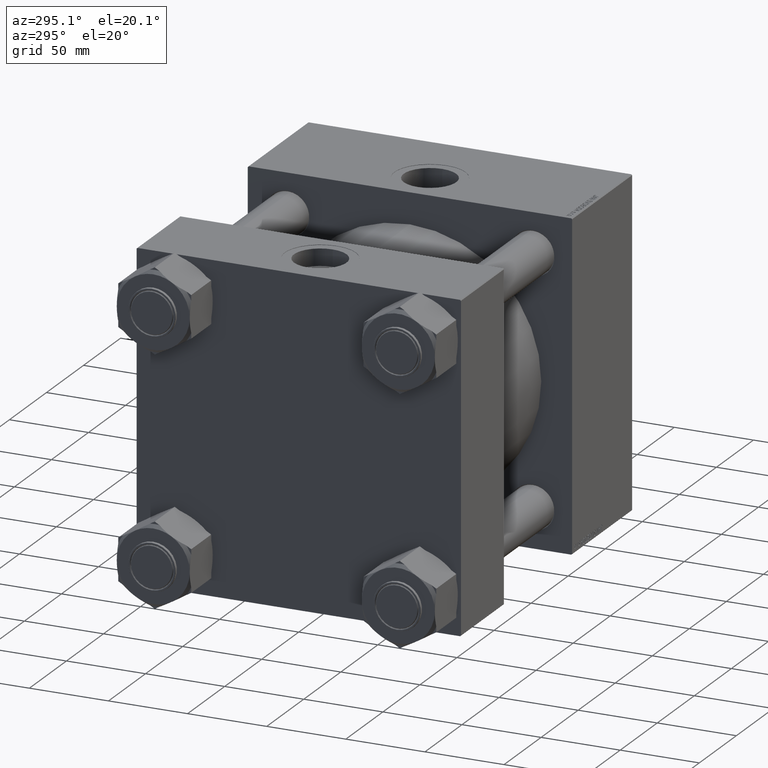
[diagram: clean part render]
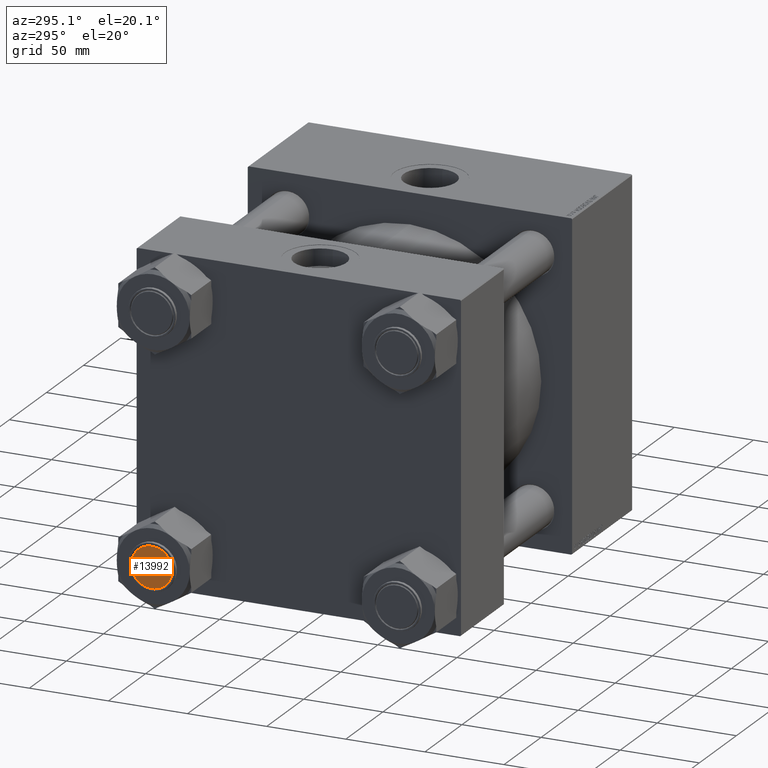
[diagram: same view with one face highlighted and labeled with its STEP entity id]
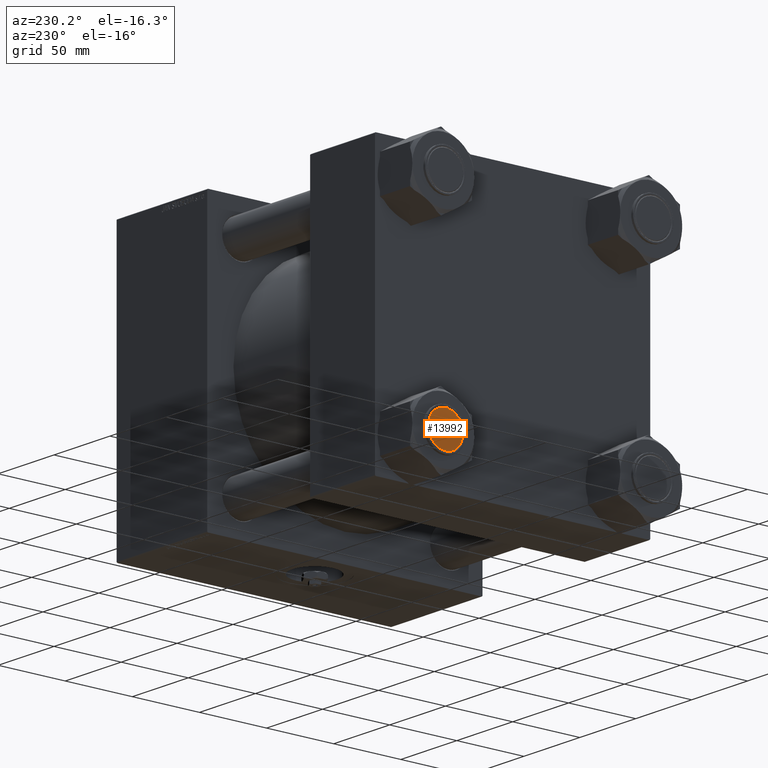
[diagram: same view with one face highlighted and labeled with its STEP entity id]
A machine part, auxiliary view. The second image highlights one B-rep face of the part: STEP entity #13992.
A second angle (auxiliary view) of the same face is appended — the face is thin or edge-on in the first view.
In plain terms, the highlighted planar face has unit normal (-1, 0, -0).
Its self-contained STEP definition (entity closure, byte-faithful):
#5943 = DIRECTION ( 'NONE',  ( 1.000000000000000000, 0.000000000000000000, 0.000000000000000000 ) ) ;
#7913 = ORIENTED_EDGE ( 'NONE', *, *, #27610, .T. ) ;
#9290 = CIRCLE ( 'NONE', #39044, 13.00000000000001066 ) ;
#11418 = CARTESIAN_POINT ( 'NONE',  ( 0.000000000000000000, 0.000000000000000000, 196.0000000000000000 ) ) ;
#12126 = ORIENTED_EDGE ( 'NONE', *, *, #43630, .T. ) ;
#13992 = ADVANCED_FACE ( 'NONE', ( #32132 ), #20430, .T. ) ;
#14280 = VERTEX_POINT ( 'NONE', #23562 ) ;
#20430 = PLANE ( 'NONE',  #25947 ) ;
#23562 = CARTESIAN_POINT ( 'NONE',  ( 13.00000000000001066, 1.622657008870243671E-15, 196.0000000000000000 ) ) ;
#25947 = AXIS2_PLACEMENT_3D ( 'NONE', #27625, #52575, #31608 ) ;
#26164 = CARTESIAN_POINT ( 'NONE',  ( 0.000000000000000000, 0.000000000000000000, 196.0000000000000000 ) ) ;
#27610 = EDGE_CURVE ( 'NONE', #47544, #14280, #9290, .T. ) ;
#27625 = CARTESIAN_POINT ( 'NONE',  ( 0.000000000000000000, 0.000000000000000000, 196.0000000000000000 ) ) ;
#31608 = DIRECTION ( 'NONE',  ( 1.000000000000000000, 0.000000000000000000, -0.000000000000000000 ) ) ;
#32132 = FACE_OUTER_BOUND ( 'NONE', #52382, .T. ) ;
#34664 = DIRECTION ( 'NONE',  ( 0.000000000000000000, 0.000000000000000000, 1.000000000000000000 ) ) ;
#35875 = DIRECTION ( 'NONE',  ( 1.000000000000000000, 0.000000000000000000, 0.000000000000000000 ) ) ;
#39044 = AXIS2_PLACEMENT_3D ( 'NONE', #11418, #44364, #35875 ) ;
#43630 = EDGE_CURVE ( 'NONE', #14280, #47544, #44154, .T. ) ;
#44154 = CIRCLE ( 'NONE', #51774, 13.00000000000001066 ) ;
#44364 = DIRECTION ( 'NONE',  ( 0.000000000000000000, 0.000000000000000000, 1.000000000000000000 ) ) ;
#47544 = VERTEX_POINT ( 'NONE', #51706 ) ;
#51706 = CARTESIAN_POINT ( 'NONE',  ( -13.00000000000001066, 0.000000000000000000, 196.0000000000000000 ) ) ;
#51774 = AXIS2_PLACEMENT_3D ( 'NONE', #26164, #34664, #5943 ) ;
#52382 = EDGE_LOOP ( 'NONE', ( #7913, #12126 ) ) ;
#52575 = DIRECTION ( 'NONE',  ( 0.000000000000000000, 0.000000000000000000, 1.000000000000000000 ) ) ;